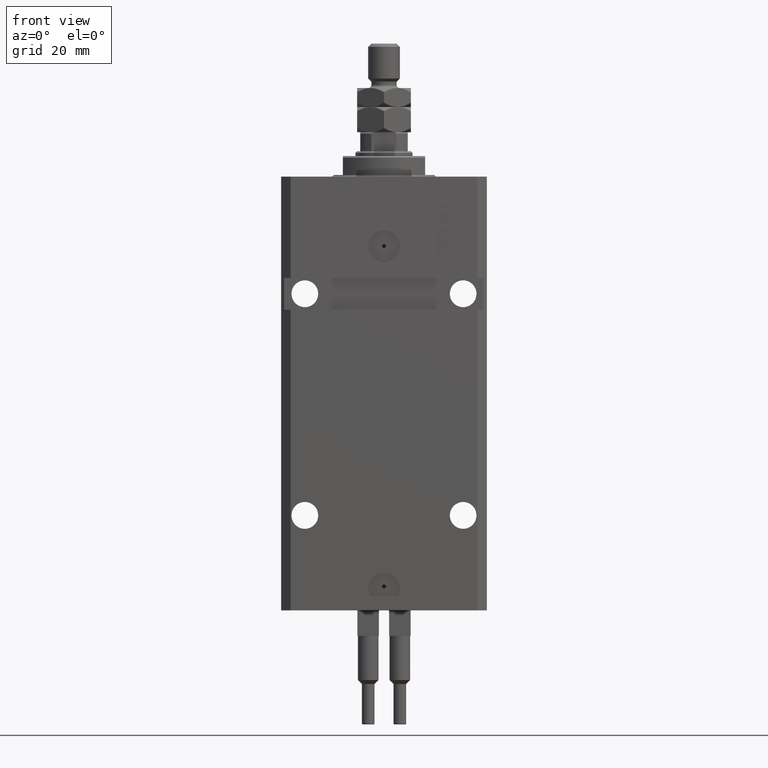
[diagram: clean part render]
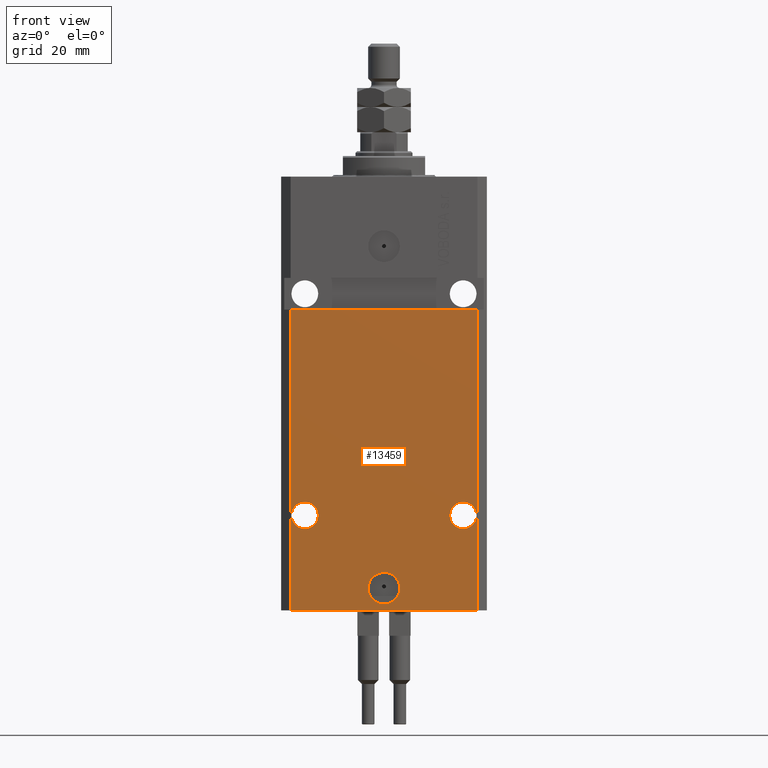
[diagram: same view with one face highlighted and labeled with its STEP entity id]
A machine part, front view. The second image highlights one B-rep face of the part: STEP entity #13459.
In plain terms, the highlighted planar face has unit normal (0, -1, 0).
Its self-contained STEP definition (entity closure, byte-faithful):
#544 = CIRCLE ( 'NONE', #8698, 4.249999999989050536 ) ;
#644 = CARTESIAN_POINT ( 'NONE',  ( -25.00000000000000355, -22.49999999999949907, -107.0000000000000000 ) ) ;
#1931 = FACE_BOUND ( 'NONE', #31403, .T. ) ;
#2279 = VERTEX_POINT ( 'NONE', #26801 ) ;
#3322 = DIRECTION ( 'NONE',  ( 1.000000000000000000, 1.176083712526788232E-16, 0.000000000000000000 ) ) ;
#3408 = VERTEX_POINT ( 'NONE', #6207 ) ;
#4177 = VERTEX_POINT ( 'NONE', #17479 ) ;
#5387 = AXIS2_PLACEMENT_3D ( 'NONE', #49981, #42038, #34095 ) ;
#5618 = CARTESIAN_POINT ( 'NONE',  ( 2.646188353185214061E-15, -22.49999999999949551, -130.0000000000000000 ) ) ;
#6207 = CARTESIAN_POINT ( 'NONE',  ( 20.75000000001096012, -22.49999999999949196, -107.0000000000000000 ) ) ;
#6454 = ORIENTED_EDGE ( 'NONE', *, *, #16157, .T. ) ;
#7639 = VERTEX_POINT ( 'NONE', #28990 ) ;
#8349 = CARTESIAN_POINT ( 'NONE',  ( 29.49999999999650413, -22.49999999999949196, -137.0000000000000000 ) ) ;
#8419 = CARTESIAN_POINT ( 'NONE',  ( -29.24999999998905409, -22.49999999999949907, -107.0000000000000000 ) ) ;
#8698 = AXIS2_PLACEMENT_3D ( 'NONE', #644, #20336, #42886 ) ;
#8866 = VECTOR ( 'NONE', #3322, 1000.000000000000000 ) ;
#9419 = VERTEX_POINT ( 'NONE', #22663 ) ;
#9642 = CIRCLE ( 'NONE', #50568, 5.000000000000006217 ) ;
#10042 = CARTESIAN_POINT ( 'NONE',  ( -25.00000000000000355, -22.49999999999949907, -107.0000000000000000 ) ) ;
#10085 = FACE_BOUND ( 'NONE', #38390, .T. ) ;
#10095 = LINE ( 'NONE', #29559, #40383 ) ;
#12599 = AXIS2_PLACEMENT_3D ( 'NONE', #22590, #30265, #17751 ) ;
#12717 = CARTESIAN_POINT ( 'NONE',  ( -32.49999999999650413, -22.49999999999949907, -41.99999999999999289 ) ) ;
#12993 = EDGE_CURVE ( 'NONE', #4177, #9419, #41367, .T. ) ;
#13459 = ADVANCED_FACE ( 'NONE', ( #1931, #22134, #10085, #21627 ), #37248, .T. ) ;
#13880 = CIRCLE ( 'NONE', #31065, 4.249999999989050536 ) ;
#14629 = ORIENTED_EDGE ( 'NONE', *, *, #39118, .F. ) ;
#15898 = AXIS2_PLACEMENT_3D ( 'NONE', #10042, #18003, #33613 ) ;
#16157 = EDGE_CURVE ( 'NONE', #21947, #29024, #43949, .T. ) ;
#16394 = CARTESIAN_POINT ( 'NONE',  ( 29.49999999999650058, -22.49999999999949196, -41.99999999999998579 ) ) ;
#17479 = CARTESIAN_POINT ( 'NONE',  ( 5.000000000000008882, -22.49999999999949551, -130.0000000000000000 ) ) ;
#17751 = DIRECTION ( 'NONE',  ( 1.000000000000000000, 0.000000000000000000, 0.000000000000000000 ) ) ;
#17792 = DIRECTION ( 'NONE',  ( 1.176083712526788232E-16, -1.000000000000000000, 0.000000000000000000 ) ) ;
#17921 = CARTESIAN_POINT ( 'NONE',  ( 29.24999999998906119, -22.49999999999949196, -107.0000000000000000 ) ) ;
#18003 = DIRECTION ( 'NONE',  ( 1.176083712526788232E-16, -1.000000000000000000, 0.000000000000000000 ) ) ;
#18510 = DIRECTION ( 'NONE',  ( 1.176083712526788232E-16, -1.000000000000000000, 0.000000000000000000 ) ) ;
#20336 = DIRECTION ( 'NONE',  ( 1.176083712526788232E-16, -1.000000000000000000, 0.000000000000000000 ) ) ;
#21371 = DIRECTION ( 'NONE',  ( 0.000000000000000000, 0.000000000000000000, 1.000000000000000000 ) ) ;
#21627 = FACE_OUTER_BOUND ( 'NONE', #48384, .T. ) ;
#21947 = VERTEX_POINT ( 'NONE', #40377 ) ;
#22134 = FACE_BOUND ( 'NONE', #38858, .T. ) ;
#22590 = CARTESIAN_POINT ( 'NONE',  ( 25.00000000000001066, -22.49999999999949196, -107.0000000000000000 ) ) ;
#22663 = CARTESIAN_POINT ( 'NONE',  ( -5.000000000000003553, -22.49999999999949551, -130.0000000000000000 ) ) ;
#23005 = CARTESIAN_POINT ( 'NONE',  ( -29.49999999999650413, -22.49999999999949907, -137.0000000000000000 ) ) ;
#23232 = VERTEX_POINT ( 'NONE', #8419 ) ;
#23251 = LINE ( 'NONE', #23005, #8866 ) ;
#23535 = ORIENTED_EDGE ( 'NONE', *, *, #33356, .F. ) ;
#25780 = EDGE_CURVE ( 'NONE', #7639, #32678, #10095, .T. ) ;
#26801 = CARTESIAN_POINT ( 'NONE',  ( -20.75000000001095302, -22.49999999999949907, -107.0000000000000000 ) ) ;
#26881 = ORIENTED_EDGE ( 'NONE', *, *, #25780, .F. ) ;
#27149 = EDGE_CURVE ( 'NONE', #3408, #44142, #48597, .T. ) ;
#27191 = EDGE_CURVE ( 'NONE', #23232, #2279, #36352, .T. ) ;
#28345 = DIRECTION ( 'NONE',  ( 1.000000000000000000, 1.067522139062765303E-16, 1.067522139062765303E-16 ) ) ;
#28990 = CARTESIAN_POINT ( 'NONE',  ( -29.49999999999650413, -22.49999999999949907, -137.0000000000000000 ) ) ;
#29024 = VERTEX_POINT ( 'NONE', #16394 ) ;
#29559 = CARTESIAN_POINT ( 'NONE',  ( -29.49999999999650413, -22.49999999999949907, -137.0000000000000000 ) ) ;
#30265 = DIRECTION ( 'NONE',  ( 1.176083712526788232E-16, -1.000000000000000000, 0.000000000000000000 ) ) ;
#31065 = AXIS2_PLACEMENT_3D ( 'NONE', #33096, #18510, #48727 ) ;
#31403 = EDGE_LOOP ( 'NONE', ( #46301, #14629 ) ) ;
#31730 = EDGE_CURVE ( 'NONE', #2279, #23232, #544, .T. ) ;
#31794 = ORIENTED_EDGE ( 'NONE', *, *, #42600, .F. ) ;
#32166 = DIRECTION ( 'NONE',  ( 0.000000000000000000, 0.000000000000000000, 1.000000000000000000 ) ) ;
#32465 = VECTOR ( 'NONE', #28345, 1000.000000000000000 ) ;
#32678 = VERTEX_POINT ( 'NONE', #37996 ) ;
#33096 = CARTESIAN_POINT ( 'NONE',  ( 25.00000000000001066, -22.49999999999949196, -107.0000000000000000 ) ) ;
#33356 = EDGE_CURVE ( 'NONE', #32678, #29024, #47823, .T. ) ;
#33404 = DIRECTION ( 'NONE',  ( 1.000000000000000000, 1.176083712526788232E-16, 0.000000000000000000 ) ) ;
#33613 = DIRECTION ( 'NONE',  ( -1.000000000000000000, 0.000000000000000000, 0.000000000000000000 ) ) ;
#34095 = DIRECTION ( 'NONE',  ( 1.000000000000000000, 0.000000000000000000, 0.000000000000000000 ) ) ;
#36352 = CIRCLE ( 'NONE', #15898, 4.249999999989050536 ) ;
#36731 = CARTESIAN_POINT ( 'NONE',  ( -29.49999999999650413, -22.49999999999949907, -137.0000000000000000 ) ) ;
#36836 = ORIENTED_EDGE ( 'NONE', *, *, #27149, .F. ) ;
#36850 = DIRECTION ( 'NONE',  ( 1.176083712526788232E-16, -1.000000000000000000, 0.000000000000000000 ) ) ;
#37109 = DIRECTION ( 'NONE',  ( 1.000000000000000000, 0.000000000000000000, 0.000000000000000000 ) ) ;
#37248 = PLANE ( 'NONE',  #45483 ) ;
#37996 = CARTESIAN_POINT ( 'NONE',  ( -29.49999999999650413, -22.49999999999949907, -41.99999999999999289 ) ) ;
#38390 = EDGE_LOOP ( 'NONE', ( #39737, #40953 ) ) ;
#38858 = EDGE_LOOP ( 'NONE', ( #31794, #36836 ) ) ;
#39118 = EDGE_CURVE ( 'NONE', #9419, #4177, #9642, .T. ) ;
#39703 = VECTOR ( 'NONE', #32166, 1000.000000000000000 ) ;
#39737 = ORIENTED_EDGE ( 'NONE', *, *, #31730, .F. ) ;
#40071 = EDGE_CURVE ( 'NONE', #7639, #21947, #23251, .T. ) ;
#40377 = CARTESIAN_POINT ( 'NONE',  ( 29.49999999999650413, -22.49999999999949196, -137.0000000000000000 ) ) ;
#40383 = VECTOR ( 'NONE', #21371, 1000.000000000000000 ) ;
#40953 = ORIENTED_EDGE ( 'NONE', *, *, #27191, .F. ) ;
#40988 = ORIENTED_EDGE ( 'NONE', *, *, #40071, .T. ) ;
#41367 = CIRCLE ( 'NONE', #5387, 5.000000000000006217 ) ;
#42038 = DIRECTION ( 'NONE',  ( 1.176083712526788232E-16, -1.000000000000000000, 0.000000000000000000 ) ) ;
#42600 = EDGE_CURVE ( 'NONE', #44142, #3408, #13880, .T. ) ;
#42886 = DIRECTION ( 'NONE',  ( -1.000000000000000000, 0.000000000000000000, 0.000000000000000000 ) ) ;
#43949 = LINE ( 'NONE', #8349, #39703 ) ;
#44142 = VERTEX_POINT ( 'NONE', #17921 ) ;
#45483 = AXIS2_PLACEMENT_3D ( 'NONE', #36731, #17792, #33404 ) ;
#46301 = ORIENTED_EDGE ( 'NONE', *, *, #12993, .F. ) ;
#47823 = LINE ( 'NONE', #12717, #32465 ) ;
#48384 = EDGE_LOOP ( 'NONE', ( #23535, #26881, #40988, #6454 ) ) ;
#48597 = CIRCLE ( 'NONE', #12599, 4.249999999989050536 ) ;
#48727 = DIRECTION ( 'NONE',  ( 1.000000000000000000, 0.000000000000000000, 0.000000000000000000 ) ) ;
#49981 = CARTESIAN_POINT ( 'NONE',  ( 2.646188353185214061E-15, -22.49999999999949551, -130.0000000000000000 ) ) ;
#50568 = AXIS2_PLACEMENT_3D ( 'NONE', #5618, #36850, #37109 ) ;